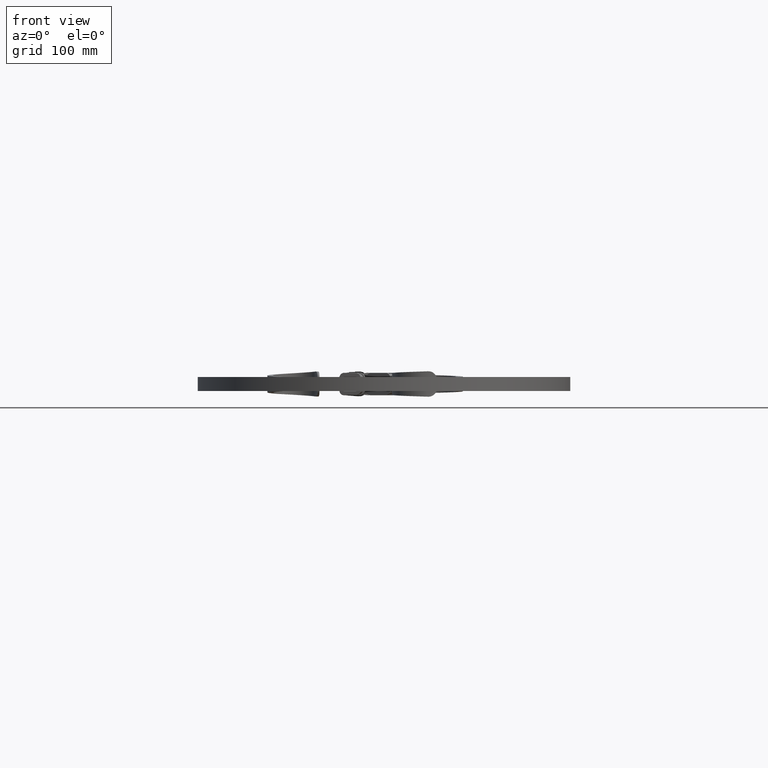
[diagram: clean part render]
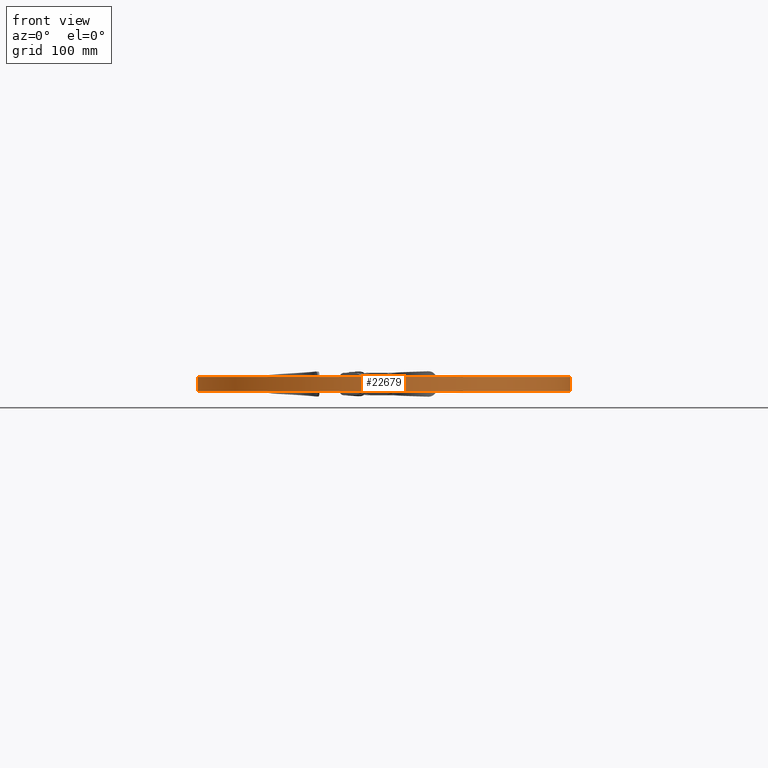
[diagram: same view with one face highlighted and labeled with its STEP entity id]
A machine part, front view. The second image highlights one B-rep face of the part: STEP entity #22679.
In plain terms, the highlighted cylindrical surface (partial cylindrical patch) has radius 215 mm, axis along (0, 0, 1).
Its self-contained STEP definition (entity closure, byte-faithful):
#110 = ORIENTED_EDGE ( 'NONE', *, *, #15211, .T. ) ;
#1326 = ORIENTED_EDGE ( 'NONE', *, *, #16415, .F. ) ;
#2619 = DIRECTION ( 'NONE',  ( 0.000000000000000000, 0.000000000000000000, 1.000000000000000000 ) ) ;
#3166 = FACE_OUTER_BOUND ( 'NONE', #4703, .T. ) ;
#4075 = CARTESIAN_POINT ( 'NONE',  ( 194.7326596457314167, -56.37266454405857985, 8.000000000000000000 ) ) ;
#4253 = DIRECTION ( 'NONE',  ( 0.000000000000000000, 0.000000000000000000, -1.000000000000000000 ) ) ;
#4703 = EDGE_LOOP ( 'NONE', ( #18178, #1326, #9078, #110 ) ) ;
#5428 = CARTESIAN_POINT ( 'NONE',  ( -118.6678035822580313, 31.78455703981519775, -8.000000000000000000 ) ) ;
#6546 = LINE ( 'NONE', #22519, #19433 ) ;
#6814 = CARTESIAN_POINT ( 'NONE',  ( -118.6678035822580313, 31.78455703981519775, 8.000000000000000000 ) ) ;
#6910 = CYLINDRICAL_SURFACE ( 'NONE', #6993, 215.0000000000000853 ) ;
#6993 = AXIS2_PLACEMENT_3D ( 'NONE', #18835, #2619, #15162 ) ;
#7987 = DIRECTION ( 'NONE',  ( 0.000000000000000000, 0.000000000000000000, 1.000000000000000000 ) ) ;
#9078 = ORIENTED_EDGE ( 'NONE', *, *, #23569, .F. ) ;
#9095 = VECTOR ( 'NONE', #4253, 1000.000000000000000 ) ;
#10321 = CARTESIAN_POINT ( 'NONE',  ( 194.7326596457314167, -56.37266454405857985, -8.000000000000000000 ) ) ;
#11299 = AXIS2_PLACEMENT_3D ( 'NONE', #13347, #7987, #20792 ) ;
#11694 = AXIS2_PLACEMENT_3D ( 'NONE', #13634, #23021, #15706 ) ;
#12505 = LINE ( 'NONE', #20820, #9095 ) ;
#12736 = VERTEX_POINT ( 'NONE', #5428 ) ;
#13347 = CARTESIAN_POINT ( 'NONE',  ( -1.665334536937734811E-13, -147.5000000000000284, 8.000000000000000000 ) ) ;
#13634 = CARTESIAN_POINT ( 'NONE',  ( -1.665334536937734811E-13, -147.5000000000000284, -8.000000000000000000 ) ) ;
#15162 = DIRECTION ( 'NONE',  ( 1.000000000000000000, 0.000000000000000000, 0.000000000000000000 ) ) ;
#15211 = EDGE_CURVE ( 'NONE', #20916, #12736, #6546, .T. ) ;
#15706 = DIRECTION ( 'NONE',  ( -0.5519432724756189179, 0.8338816606503016704, 0.000000000000000000 ) ) ;
#16385 = CIRCLE ( 'NONE', #11299, 215.0000000000000568 ) ;
#16415 = EDGE_CURVE ( 'NONE', #21128, #19681, #12505, .T. ) ;
#18178 = ORIENTED_EDGE ( 'NONE', *, *, #18483, .T. ) ;
#18483 = EDGE_CURVE ( 'NONE', #12736, #19681, #23405, .T. ) ;
#18835 = CARTESIAN_POINT ( 'NONE',  ( -1.665334536937734811E-13, -147.5000000000000284, 0.000000000000000000 ) ) ;
#19433 = VECTOR ( 'NONE', #22207, 1000.000000000000000 ) ;
#19681 = VERTEX_POINT ( 'NONE', #10321 ) ;
#20792 = DIRECTION ( 'NONE',  ( -0.5519432724756189179, 0.8338816606503016704, 0.000000000000000000 ) ) ;
#20820 = CARTESIAN_POINT ( 'NONE',  ( 194.7326596457314167, -56.37266454405848037, -8.000000000000000000 ) ) ;
#20916 = VERTEX_POINT ( 'NONE', #6814 ) ;
#21128 = VERTEX_POINT ( 'NONE', #4075 ) ;
#22207 = DIRECTION ( 'NONE',  ( 0.000000000000000000, 0.000000000000000000, -1.000000000000000000 ) ) ;
#22519 = CARTESIAN_POINT ( 'NONE',  ( -118.6678035822580597, 31.78455703981514091, -8.000000000000000000 ) ) ;
#22679 = ADVANCED_FACE ( 'NONE', ( #3166 ), #6910, .T. ) ;
#23021 = DIRECTION ( 'NONE',  ( 0.000000000000000000, 0.000000000000000000, 1.000000000000000000 ) ) ;
#23405 = CIRCLE ( 'NONE', #11694, 215.0000000000000568 ) ;
#23569 = EDGE_CURVE ( 'NONE', #20916, #21128, #16385, .T. ) ;